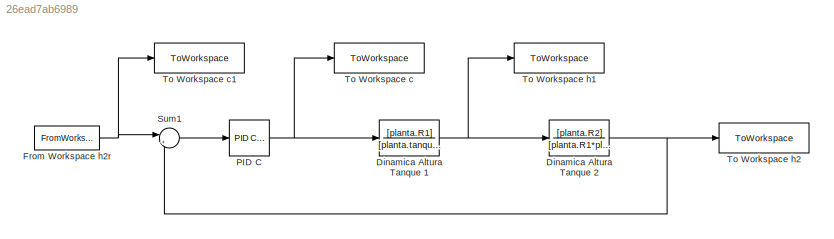
MODEL slx_26ead7ab6989
KIND model
CONFIG AbsTol = auto
CONFIG EnableMultiTasking = off
CONFIG FixedStep = auto
CONFIG MaxStep = auto
CONFIG MinStep = auto
CONFIG RelTol = 1e-3
CONFIG SampleTimeConstraint = Unconstrained
CONFIG SolverName = VariableStepAuto
CONFIG StartTime = 0.0
CONFIG StopTime = 15
BLOCK [TransferFcn] Dinamica Altura Tanque 1
  Denominator = [planta.tanque_1.A*planta.R1 1]
  Numerator = [planta.R1]
BLOCK [TransferFcn] Dinamica Altura Tanque 2
  Denominator = [planta.R1*planta.tanque_2.A*planta.R2 planta.R1]
  Numerator = [planta.R2]
BLOCK [FromWorkspace] From Workspace h2r
  VariableName = h2r
BLOCK [Reference] PID C  REF=slpidlib/PID Controller
  LibrarySourceBlock = simulink/Continuous/PID Controller
  SourceBlock = slpidlib/PID Controller
  SourceType = PID 1dof
BLOCK [Sum] Sum1
  Inputs = |+-
BLOCK [ToWorkspace] To Workspace c
  FixptAsFi = on
  MaxDataPoints = inf
  SampleTime = -1
  SaveFormat = Structure With Time
  VariableName = c
BLOCK [ToWorkspace] To Workspace c1
  FixptAsFi = on
  MaxDataPoints = inf
  SampleTime = -1
  SaveFormat = Structure With Time
  VariableName = h2r
BLOCK [ToWorkspace] To Workspace h1
  FixptAsFi = on
  MaxDataPoints = inf
  SampleTime = -1
  SaveFormat = Structure With Time
  VariableName = h1
BLOCK [ToWorkspace] To Workspace h2
  FixptAsFi = on
  MaxDataPoints = inf
  SampleTime = -1
  SaveFormat = Structure With Time
  VariableName = h2
NET Dinamica Altura Tanque 1:1 -> Dinamica Altura Tanque 2:1, To Workspace h1:1
NET Dinamica Altura Tanque 2:1 -> Sum1:2, To Workspace h2:1
NET From Workspace h2r:1 -> Sum1:1, To Workspace c1:1
NET PID C:1 -> Dinamica Altura Tanque 1:1, To Workspace c:1
LINE Sum1:1 -> PID C:1
note: NET lines group one-source signal fan-out (src -> all destinations, sorted); 1:1 wires keep LINE
